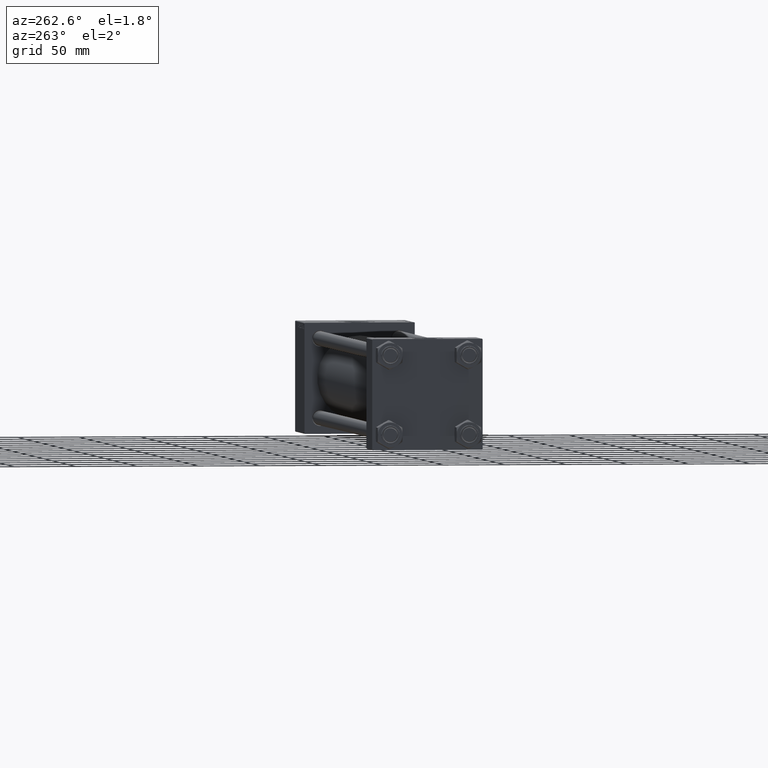
[diagram: clean part render]
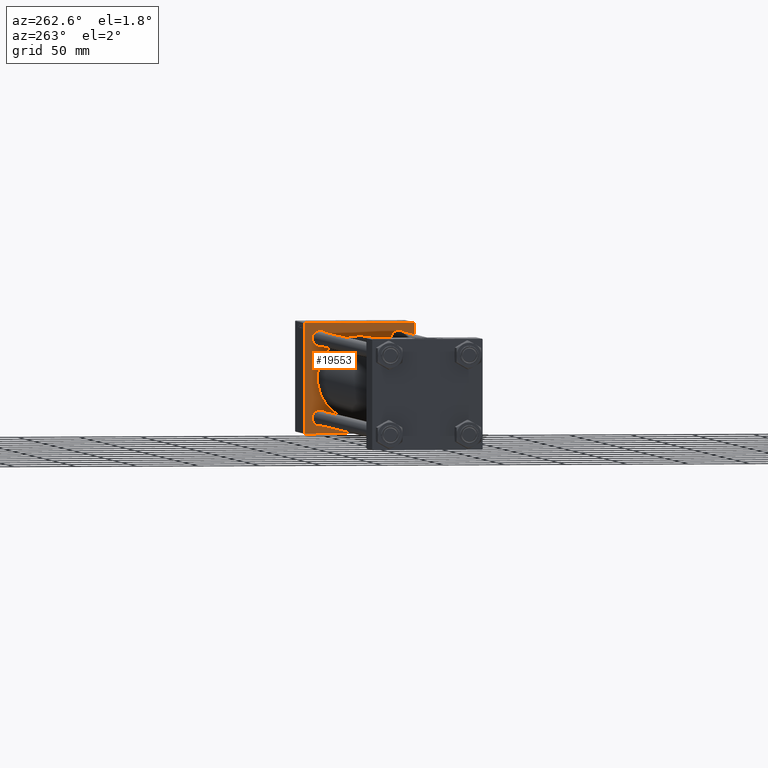
[diagram: same view with one face highlighted and labeled with its STEP entity id]
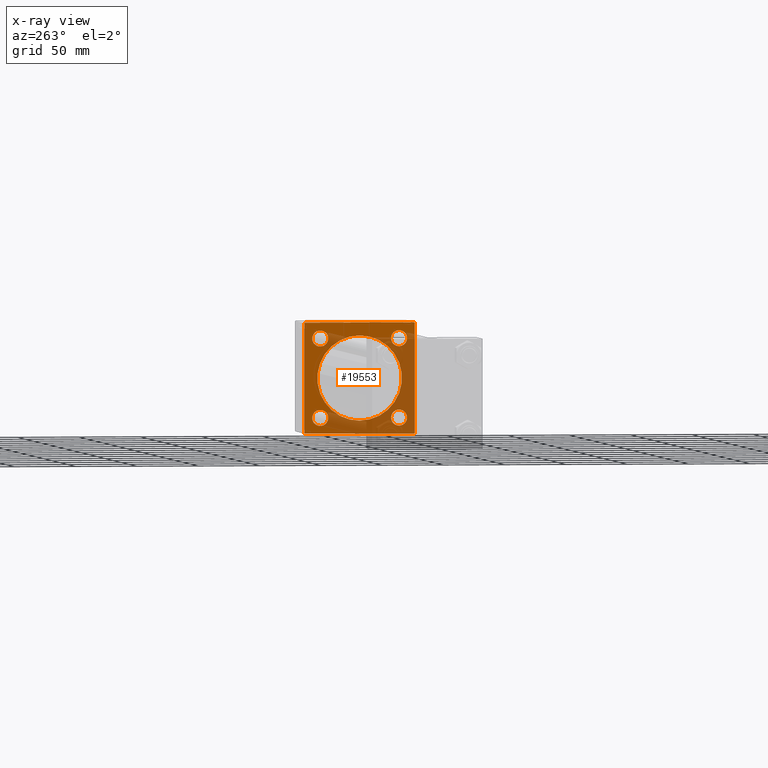
[diagram: x-ray of the same camera — body ghosted, the highlighted face saturated]
A machine part, auxiliary view. The second image highlights one B-rep face of the part: STEP entity #19553.
The next image is the same camera in x-ray: the body ghosted, the highlighted face saturated — about 49% of this face is hidden behind the body in this view.
In plain terms, the highlighted planar face has unit normal (-1, 0, 0).
Its self-contained STEP definition (entity closure, byte-faithful):
#483 = LINE ( 'NONE', #32596, #26705 ) ;
#686 = CARTESIAN_POINT ( 'NONE',  ( 426.0000000000000000, -44.75000000000245848, 44.74999999999749178 ) ) ;
#732 = CARTESIAN_POINT ( 'NONE',  ( 426.0000000000000000, 44.74999999999748468, 44.75000000000245137 ) ) ;
#1465 = AXIS2_PLACEMENT_3D ( 'NONE', #24374, #12524, #17781 ) ;
#1825 = EDGE_CURVE ( 'NONE', #21185, #41113, #38330, .T. ) ;
#1985 = EDGE_CURVE ( 'NONE', #32999, #49202, #39084, .T. ) ;
#3319 = CARTESIAN_POINT ( 'NONE',  ( 426.0000000000000000, -2.602085213965210642E-15, 34.50000000000000000 ) ) ;
#3633 = ORIENTED_EDGE ( 'NONE', *, *, #10776, .T. ) ;
#3821 = CARTESIAN_POINT ( 'NONE',  ( 426.0000000000000000, -44.74999999999718625, -44.75000000000277112 ) ) ;
#3827 = VERTEX_POINT ( 'NONE', #44129 ) ;
#3861 = EDGE_CURVE ( 'NONE', #27371, #41113, #44656, .T. ) ;
#3945 = CARTESIAN_POINT ( 'NONE',  ( 426.0000000000000000, -32.14999999999997726, -32.15000000000001279 ) ) ;
#3948 = CIRCLE ( 'NONE', #48545, 6.499999999999999112 ) ;
#4684 = DIRECTION ( 'NONE',  ( -0.000000000000000000, -0.7071067811865081598, -0.7071067811865867636 ) ) ;
#4712 = VECTOR ( 'NONE', #45458, 1000.000000000000000 ) ;
#4764 = EDGE_CURVE ( 'NONE', #27371, #20550, #17532, .T. ) ;
#5113 = DIRECTION ( 'NONE',  ( 0.000000000000000000, 0.000000000000000000, -1.000000000000000000 ) ) ;
#6321 = EDGE_CURVE ( 'NONE', #15769, #3827, #51008, .T. ) ;
#6340 = EDGE_LOOP ( 'NONE', ( #23354, #25105 ) ) ;
#6552 = CARTESIAN_POINT ( 'NONE',  ( 426.0000000000000000, -32.14999999999997726, -32.15000000000001279 ) ) ;
#7475 = AXIS2_PLACEMENT_3D ( 'NONE', #25920, #22490, #10364 ) ;
#8347 = EDGE_LOOP ( 'NONE', ( #37232, #41284 ) ) ;
#8362 = AXIS2_PLACEMENT_3D ( 'NONE', #49371, #13031, #29606 ) ;
#8425 = CIRCLE ( 'NONE', #25268, 6.500000000000005329 ) ;
#8743 = CARTESIAN_POINT ( 'NONE',  ( 426.0000000000000000, 45.00000000000001421, -44.49999999999991473 ) ) ;
#8820 = FACE_OUTER_BOUND ( 'NONE', #43172, .T. ) ;
#9115 = ORIENTED_EDGE ( 'NONE', *, *, #15063, .T. ) ;
#9722 = VECTOR ( 'NONE', #12532, 1000.000000000000000 ) ;
#10356 = LINE ( 'NONE', #35079, #21090 ) ;
#10364 = DIRECTION ( 'NONE',  ( 0.000000000000000000, 0.000000000000000000, 1.000000000000000000 ) ) ;
#10624 = ORIENTED_EDGE ( 'NONE', *, *, #3861, .T. ) ;
#10776 = EDGE_CURVE ( 'NONE', #18872, #14972, #12369, .T. ) ;
#11063 = EDGE_CURVE ( 'NONE', #3827, #15769, #3948, .T. ) ;
#11081 = EDGE_LOOP ( 'NONE', ( #28903, #16954 ) ) ;
#11155 = DIRECTION ( 'NONE',  ( 0.000000000000000000, 0.000000000000000000, -1.000000000000000000 ) ) ;
#11260 = DIRECTION ( 'NONE',  ( 0.000000000000000000, 0.000000000000000000, 1.000000000000000000 ) ) ;
#11428 = ORIENTED_EDGE ( 'NONE', *, *, #48179, .T. ) ;
#11653 = DIRECTION ( 'NONE',  ( 0.000000000000000000, 0.000000000000000000, 1.000000000000000000 ) ) ;
#11994 = EDGE_CURVE ( 'NONE', #21573, #50637, #8425, .T. ) ;
#12095 = ORIENTED_EDGE ( 'NONE', *, *, #28502, .T. ) ;
#12186 = CARTESIAN_POINT ( 'NONE',  ( 426.0000000000000000, 32.14999999999999147, -32.15000000000000568 ) ) ;
#12369 = CIRCLE ( 'NONE', #20814, 6.500000000000005329 ) ;
#12524 = DIRECTION ( 'NONE',  ( 1.000000000000000000, 0.000000000000000000, 0.000000000000000000 ) ) ;
#12532 = DIRECTION ( 'NONE',  ( -0.000000000000000000, 0.7071067811865081598, 0.7071067811865867636 ) ) ;
#12769 = FACE_BOUND ( 'NONE', #34904, .T. ) ;
#12827 = CARTESIAN_POINT ( 'NONE',  ( 426.0000000000000000, -32.14999999999997726, 25.65000000000000213 ) ) ;
#12878 = DIRECTION ( 'NONE',  ( 1.000000000000000000, 0.000000000000000000, 0.000000000000000000 ) ) ;
#13031 = DIRECTION ( 'NONE',  ( -1.000000000000000000, 0.000000000000000000, -0.000000000000000000 ) ) ;
#13192 = CARTESIAN_POINT ( 'NONE',  ( 426.0000000000000000, -32.14999999999997726, 38.65000000000002700 ) ) ;
#13373 = CARTESIAN_POINT ( 'NONE',  ( 426.0000000000000000, 32.14999999999999147, 32.15000000000000568 ) ) ;
#13440 = CIRCLE ( 'NONE', #48740, 6.500000000000005329 ) ;
#13558 = PLANE ( 'NONE',  #8362 ) ;
#13649 = DIRECTION ( 'NONE',  ( 0.000000000000000000, -1.000000000000000000, 0.000000000000000000 ) ) ;
#13868 = CIRCLE ( 'NONE', #44947, 34.50000000000000000 ) ;
#14067 = CARTESIAN_POINT ( 'NONE',  ( 426.0000000000000000, 32.14999999999999147, -32.15000000000000568 ) ) ;
#14532 = CARTESIAN_POINT ( 'NONE',  ( 426.0000000000000000, -44.99999999999999289, -44.49999999999997158 ) ) ;
#14972 = VERTEX_POINT ( 'NONE', #15235 ) ;
#15063 = EDGE_CURVE ( 'NONE', #23850, #35836, #483, .T. ) ;
#15235 = CARTESIAN_POINT ( 'NONE',  ( 426.0000000000000000, 32.14999999999999147, -38.65000000000001279 ) ) ;
#15769 = VERTEX_POINT ( 'NONE', #39200 ) ;
#15804 = CARTESIAN_POINT ( 'NONE',  ( 426.0000000000000000, 44.50000000000001421, -45.00000000000000000 ) ) ;
#16821 = LINE ( 'NONE', #33131, #27037 ) ;
#16954 = ORIENTED_EDGE ( 'NONE', *, *, #23137, .T. ) ;
#17242 = FACE_BOUND ( 'NONE', #26286, .T. ) ;
#17407 = ORIENTED_EDGE ( 'NONE', *, *, #35251, .T. ) ;
#17532 = LINE ( 'NONE', #17798, #4712 ) ;
#17757 = DIRECTION ( 'NONE',  ( 0.000000000000000000, 0.000000000000000000, 1.000000000000000000 ) ) ;
#17781 = DIRECTION ( 'NONE',  ( 0.000000000000000000, 0.000000000000000000, 1.000000000000000000 ) ) ;
#17798 = CARTESIAN_POINT ( 'NONE',  ( 426.0000000000000000, -45.00000000000000000, 44.99999999999998579 ) ) ;
#18387 = VERTEX_POINT ( 'NONE', #21014 ) ;
#18720 = EDGE_CURVE ( 'NONE', #50637, #21573, #20985, .T. ) ;
#18872 = VERTEX_POINT ( 'NONE', #24548 ) ;
#19553 = ADVANCED_FACE ( 'NONE', ( #33566, #17242, #12769, #44891, #41732, #8820 ), #13558, .T. ) ;
#19696 = DIRECTION ( 'NONE',  ( 1.000000000000000000, 0.000000000000000000, 0.000000000000000000 ) ) ;
#20550 = VERTEX_POINT ( 'NONE', #14532 ) ;
#20760 = DIRECTION ( 'NONE',  ( 1.000000000000000000, 0.000000000000000000, 0.000000000000000000 ) ) ;
#20814 = AXIS2_PLACEMENT_3D ( 'NONE', #12186, #31923, #11653 ) ;
#20985 = CIRCLE ( 'NONE', #7475, 6.500000000000005329 ) ;
#21014 = CARTESIAN_POINT ( 'NONE',  ( 426.0000000000000000, -32.14999999999997726, -25.65000000000000568 ) ) ;
#21090 = VECTOR ( 'NONE', #43242, 1000.000000000000000 ) ;
#21185 = VERTEX_POINT ( 'NONE', #34933 ) ;
#21573 = VERTEX_POINT ( 'NONE', #13192 ) ;
#21787 = DIRECTION ( 'NONE',  ( 0.000000000000000000, -1.000000000000000000, -1.541976423090495140E-16 ) ) ;
#22490 = DIRECTION ( 'NONE',  ( 1.000000000000000000, 0.000000000000000000, 0.000000000000000000 ) ) ;
#22495 = DIRECTION ( 'NONE',  ( 0.000000000000000000, 0.000000000000000000, 1.000000000000000000 ) ) ;
#23062 = ORIENTED_EDGE ( 'NONE', *, *, #6321, .T. ) ;
#23137 = EDGE_CURVE ( 'NONE', #48050, #18387, #13440, .T. ) ;
#23354 = ORIENTED_EDGE ( 'NONE', *, *, #11994, .T. ) ;
#23850 = VERTEX_POINT ( 'NONE', #8743 ) ;
#24097 = DIRECTION ( 'NONE',  ( 0.000000000000000000, -0.7071067811865916486, 0.7071067811865033859 ) ) ;
#24374 = CARTESIAN_POINT ( 'NONE',  ( 426.0000000000000000, 32.14999999999999147, 32.15000000000000568 ) ) ;
#24470 = CARTESIAN_POINT ( 'NONE',  ( 426.0000000000000000, 45.00000000000001421, 44.49999999999994316 ) ) ;
#24548 = CARTESIAN_POINT ( 'NONE',  ( 426.0000000000000000, 32.14999999999999147, -25.64999999999999858 ) ) ;
#24858 = DIRECTION ( 'NONE',  ( 1.000000000000000000, 0.000000000000000000, 0.000000000000000000 ) ) ;
#24913 = AXIS2_PLACEMENT_3D ( 'NONE', #14067, #20760, #22495 ) ;
#25105 = ORIENTED_EDGE ( 'NONE', *, *, #18720, .T. ) ;
#25268 = AXIS2_PLACEMENT_3D ( 'NONE', #37758, #29327, #17757 ) ;
#25609 = VECTOR ( 'NONE', #24097, 1000.000000000000000 ) ;
#25661 = AXIS2_PLACEMENT_3D ( 'NONE', #40647, #24858, #5113 ) ;
#25758 = EDGE_CURVE ( 'NONE', #33619, #23850, #10356, .T. ) ;
#25920 = CARTESIAN_POINT ( 'NONE',  ( 426.0000000000000000, -32.14999999999997726, 32.15000000000001279 ) ) ;
#26286 = EDGE_LOOP ( 'NONE', ( #23062, #51595 ) ) ;
#26471 = VECTOR ( 'NONE', #21787, 1000.000000000000000 ) ;
#26705 = VECTOR ( 'NONE', #4684, 1000.000000000000000 ) ;
#27037 = VECTOR ( 'NONE', #13649, 1000.000000000000000 ) ;
#27371 = VERTEX_POINT ( 'NONE', #38800 ) ;
#27381 = CARTESIAN_POINT ( 'NONE',  ( 426.0000000000000000, -44.49999999999990052, -45.00000000000000000 ) ) ;
#27413 = CIRCLE ( 'NONE', #24913, 6.500000000000005329 ) ;
#27610 = ORIENTED_EDGE ( 'NONE', *, *, #42398, .T. ) ;
#28502 = EDGE_CURVE ( 'NONE', #35836, #38252, #16821, .T. ) ;
#28903 = ORIENTED_EDGE ( 'NONE', *, *, #46977, .T. ) ;
#29002 = VECTOR ( 'NONE', #49700, 1000.000000000000000 ) ;
#29327 = DIRECTION ( 'NONE',  ( 1.000000000000000000, 0.000000000000000000, 0.000000000000000000 ) ) ;
#29425 = DIRECTION ( 'NONE',  ( 1.000000000000000000, 0.000000000000000000, 0.000000000000000000 ) ) ;
#29606 = DIRECTION ( 'NONE',  ( -0.000000000000000000, 0.000000000000000000, 1.000000000000000000 ) ) ;
#31923 = DIRECTION ( 'NONE',  ( 1.000000000000000000, 0.000000000000000000, 0.000000000000000000 ) ) ;
#32596 = CARTESIAN_POINT ( 'NONE',  ( 426.0000000000000000, 44.75000000000247269, -44.74999999999750599 ) ) ;
#32999 = VERTEX_POINT ( 'NONE', #46551 ) ;
#33131 = CARTESIAN_POINT ( 'NONE',  ( 426.0000000000000000, 45.00000000000001421, -45.00000000000000000 ) ) ;
#33566 = FACE_BOUND ( 'NONE', #6340, .T. ) ;
#33619 = VERTEX_POINT ( 'NONE', #24470 ) ;
#34904 = EDGE_LOOP ( 'NONE', ( #3633, #11428 ) ) ;
#34933 = CARTESIAN_POINT ( 'NONE',  ( 426.0000000000000000, 44.49999999999990052, 45.00000000000000000 ) ) ;
#35072 = ORIENTED_EDGE ( 'NONE', *, *, #1825, .F. ) ;
#35079 = CARTESIAN_POINT ( 'NONE',  ( 426.0000000000000000, 45.00000000000001421, 45.00000000000000000 ) ) ;
#35251 = EDGE_CURVE ( 'NONE', #38252, #20550, #43840, .T. ) ;
#35477 = ORIENTED_EDGE ( 'NONE', *, *, #25758, .T. ) ;
#35836 = VERTEX_POINT ( 'NONE', #15804 ) ;
#37232 = ORIENTED_EDGE ( 'NONE', *, *, #44609, .T. ) ;
#37498 = CARTESIAN_POINT ( 'NONE',  ( 426.0000000000000000, -44.49999999999997158, 44.99999999999998579 ) ) ;
#37561 = CARTESIAN_POINT ( 'NONE',  ( 426.0000000000000000, 45.00000000000001421, 45.00000000000000000 ) ) ;
#37758 = CARTESIAN_POINT ( 'NONE',  ( 426.0000000000000000, -32.14999999999997726, 32.15000000000001279 ) ) ;
#38252 = VERTEX_POINT ( 'NONE', #27381 ) ;
#38330 = LINE ( 'NONE', #37561, #26471 ) ;
#38800 = CARTESIAN_POINT ( 'NONE',  ( 426.0000000000000000, -45.00000000000000000, 44.49999999999992895 ) ) ;
#39084 = CIRCLE ( 'NONE', #25661, 34.50000000000000000 ) ;
#39200 = CARTESIAN_POINT ( 'NONE',  ( 426.0000000000000000, 32.14999999999999147, 38.65000000000001279 ) ) ;
#40531 = DIRECTION ( 'NONE',  ( 0.000000000000000000, 0.000000000000000000, 1.000000000000000000 ) ) ;
#40647 = CARTESIAN_POINT ( 'NONE',  ( 426.0000000000000000, -2.602085213965210642E-15, 0.000000000000000000 ) ) ;
#41113 = VERTEX_POINT ( 'NONE', #37498 ) ;
#41262 = LINE ( 'NONE', #732, #29002 ) ;
#41284 = ORIENTED_EDGE ( 'NONE', *, *, #1985, .T. ) ;
#41721 = ORIENTED_EDGE ( 'NONE', *, *, #4764, .F. ) ;
#41732 = FACE_BOUND ( 'NONE', #8347, .T. ) ;
#42398 = EDGE_CURVE ( 'NONE', #21185, #33619, #41262, .T. ) ;
#43172 = EDGE_LOOP ( 'NONE', ( #12095, #17407, #41721, #10624, #35072, #27610, #35477, #9115 ) ) ;
#43242 = DIRECTION ( 'NONE',  ( 0.000000000000000000, 0.000000000000000000, -1.000000000000000000 ) ) ;
#43840 = LINE ( 'NONE', #3821, #25609 ) ;
#44129 = CARTESIAN_POINT ( 'NONE',  ( 426.0000000000000000, 32.14999999999999147, 25.65000000000000213 ) ) ;
#44334 = DIRECTION ( 'NONE',  ( 1.000000000000000000, 0.000000000000000000, 0.000000000000000000 ) ) ;
#44609 = EDGE_CURVE ( 'NONE', #49202, #32999, #13868, .T. ) ;
#44656 = LINE ( 'NONE', #686, #9722 ) ;
#44891 = FACE_BOUND ( 'NONE', #11081, .T. ) ;
#44947 = AXIS2_PLACEMENT_3D ( 'NONE', #47490, #44334, #11155 ) ;
#44973 = DIRECTION ( 'NONE',  ( 0.000000000000000000, 0.000000000000000000, 1.000000000000000000 ) ) ;
#45458 = DIRECTION ( 'NONE',  ( 0.000000000000000000, 7.709882115452478166E-17, -1.000000000000000000 ) ) ;
#45916 = AXIS2_PLACEMENT_3D ( 'NONE', #6552, #19696, #11260 ) ;
#46551 = CARTESIAN_POINT ( 'NONE',  ( 426.0000000000000000, 1.622946243093158675E-15, -34.50000000000000000 ) ) ;
#46977 = EDGE_CURVE ( 'NONE', #18387, #48050, #51727, .T. ) ;
#47490 = CARTESIAN_POINT ( 'NONE',  ( 426.0000000000000000, -2.602085213965210642E-15, 0.000000000000000000 ) ) ;
#47607 = CARTESIAN_POINT ( 'NONE',  ( 426.0000000000000000, -32.14999999999997726, -38.65000000000001990 ) ) ;
#48050 = VERTEX_POINT ( 'NONE', #47607 ) ;
#48179 = EDGE_CURVE ( 'NONE', #14972, #18872, #27413, .T. ) ;
#48545 = AXIS2_PLACEMENT_3D ( 'NONE', #13373, #29425, #44973 ) ;
#48740 = AXIS2_PLACEMENT_3D ( 'NONE', #3945, #12878, #40531 ) ;
#49202 = VERTEX_POINT ( 'NONE', #3319 ) ;
#49371 = CARTESIAN_POINT ( 'NONE',  ( 426.0000000000000000, 0.000000000000000000, 0.000000000000000000 ) ) ;
#49700 = DIRECTION ( 'NONE',  ( 0.000000000000000000, 0.7071067811865867636, -0.7071067811865081598 ) ) ;
#50637 = VERTEX_POINT ( 'NONE', #12827 ) ;
#51008 = CIRCLE ( 'NONE', #1465, 6.499999999999999112 ) ;
#51595 = ORIENTED_EDGE ( 'NONE', *, *, #11063, .T. ) ;
#51727 = CIRCLE ( 'NONE', #45916, 6.500000000000005329 ) ;